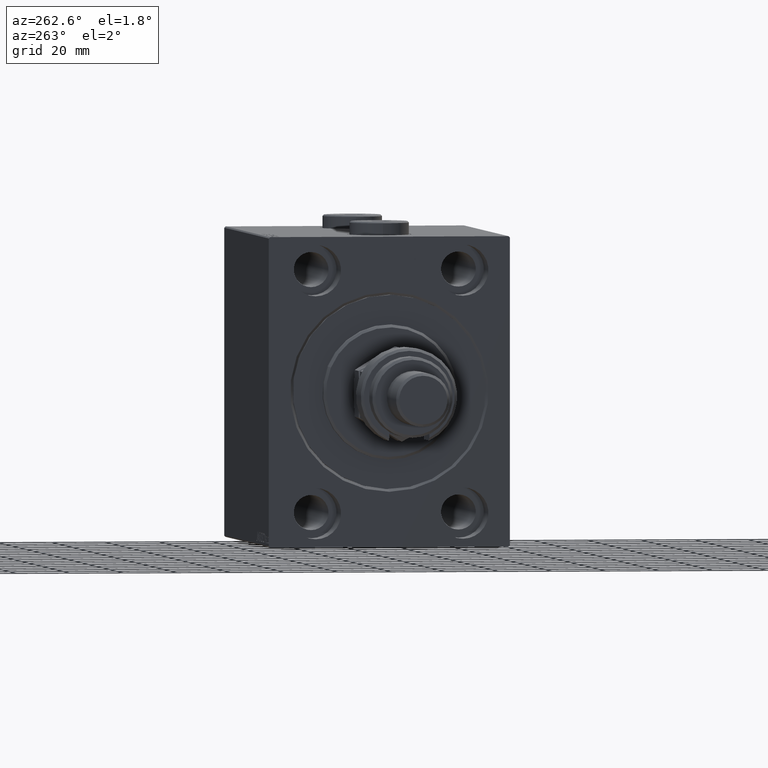
[diagram: clean part render]
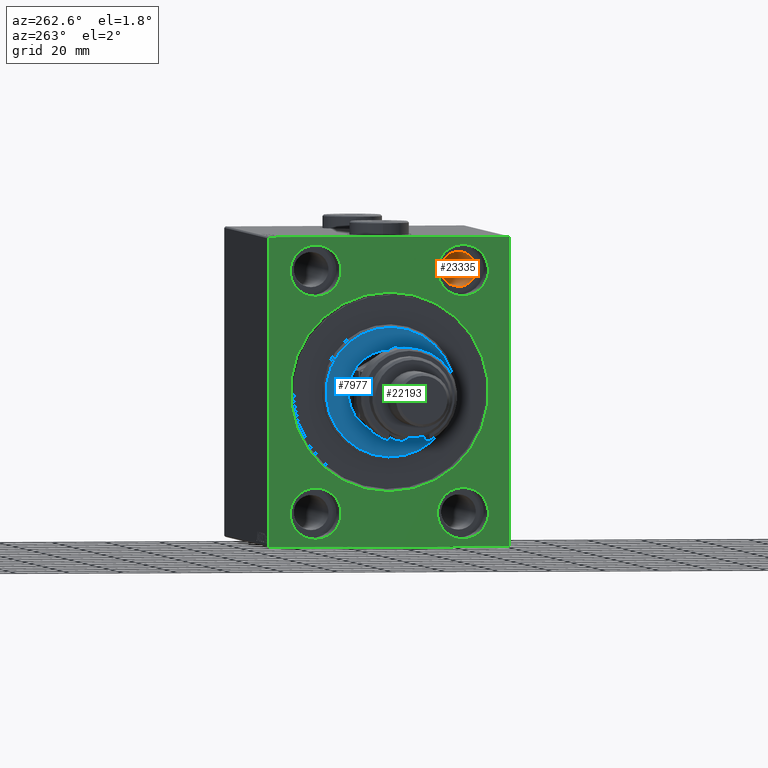
[diagram: same view with three faces highlighted in distinct colors, each labeled with its STEP entity id]
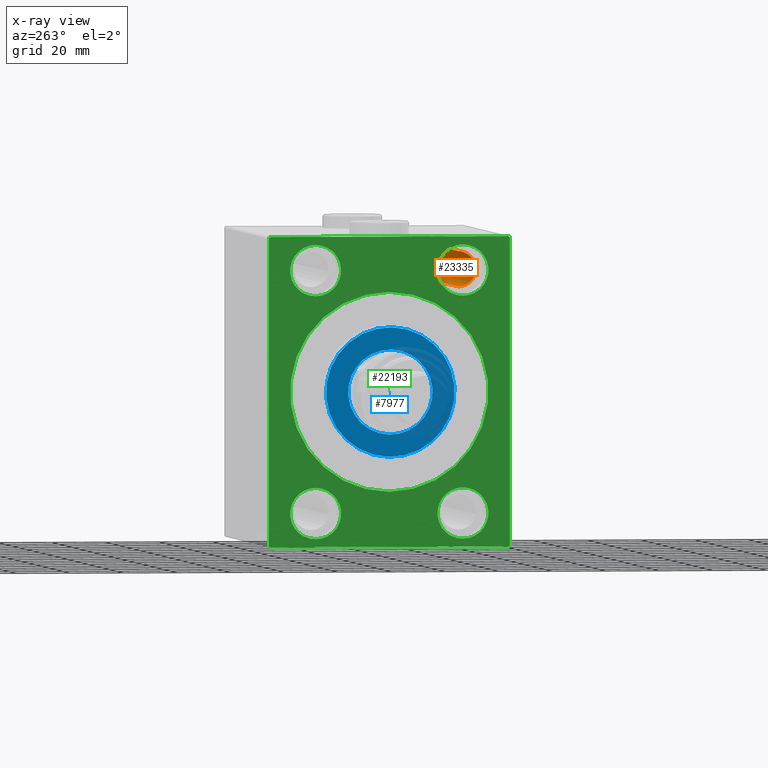
[diagram: x-ray of the same camera — body ghosted, the three highlighted faces saturated]
A machine part, auxiliary view with three faces highlighted in distinct colors.
The next image is the same camera in x-ray (body ghosted, the three faces saturated) — at least one of them is partly hidden behind the body in this view.
Their STEP definitions:

[orange] entity #23335 — the highlighted cylindrical surface (edge-blend (fillet) strip) has radius 6.5 mm, axis along (-1, -0, -0).
#351 = ORIENTED_EDGE ( 'NONE', *, *, #40664, .F. ) ;
#812 = EDGE_LOOP ( 'NONE', ( #16871, #20115, #41736, #351 ) ) ;
#5483 = VERTEX_POINT ( 'NONE', #6569 ) ;
#5888 = CARTESIAN_POINT ( 'NONE',  ( 115.0000000000000000, -27.49999999999998934, 38.50000000000000711 ) ) ;
#6569 = CARTESIAN_POINT ( 'NONE',  ( 115.0000000000000000, -27.49999999999998934, 51.50000000000000711 ) ) ;
#8068 = AXIS2_PLACEMENT_3D ( 'NONE', #41659, #9008, #8295 ) ;
#8295 = DIRECTION ( 'NONE',  ( 0.000000000000000000, 0.000000000000000000, 1.000000000000000000 ) ) ;
#8762 = EDGE_CURVE ( 'NONE', #38720, #5483, #48199, .T. ) ;
#9008 = DIRECTION ( 'NONE',  ( -1.000000000000000000, -0.000000000000000000, -0.000000000000000000 ) ) ;
#10858 = VERTEX_POINT ( 'NONE', #41650 ) ;
#11516 = CARTESIAN_POINT ( 'NONE',  ( 12.99999999999999822, -27.49999999999998934, 38.50000000000000711 ) ) ;
#11766 = DIRECTION ( 'NONE',  ( -1.000000000000000000, -0.000000000000000000, -0.000000000000000000 ) ) ;
#12049 = CIRCLE ( 'NONE', #36186, 6.499999999999999112 ) ;
#12416 = EDGE_CURVE ( 'NONE', #38720, #16245, #26626, .T. ) ;
#16245 = VERTEX_POINT ( 'NONE', #11516 ) ;
#16337 = DIRECTION ( 'NONE',  ( 0.000000000000000000, 0.000000000000000000, -1.000000000000000000 ) ) ;
#16819 = CARTESIAN_POINT ( 'NONE',  ( 115.0000000000000000, -27.49999999999998934, 45.00000000000000711 ) ) ;
#16871 = ORIENTED_EDGE ( 'NONE', *, *, #8762, .F. ) ;
#20115 = ORIENTED_EDGE ( 'NONE', *, *, #12416, .T. ) ;
#20807 = LINE ( 'NONE', #31269, #22046 ) ;
#22046 = VECTOR ( 'NONE', #46132, 1000.000000000000000 ) ;
#23335 = ADVANCED_FACE ( 'NONE', ( #26800 ), #37778, .F. ) ;
#26626 = LINE ( 'NONE', #41252, #35841 ) ;
#26800 = FACE_OUTER_BOUND ( 'NONE', #812, .T. ) ;
#27423 = EDGE_CURVE ( 'NONE', #16245, #10858, #12049, .T. ) ;
#31269 = CARTESIAN_POINT ( 'NONE',  ( 128.0000000000000000, -27.49999999999998934, 51.50000000000000711 ) ) ;
#32592 = AXIS2_PLACEMENT_3D ( 'NONE', #16819, #46284, #16337 ) ;
#33496 = CARTESIAN_POINT ( 'NONE',  ( 12.99999999999999822, -27.49999999999998934, 45.00000000000000711 ) ) ;
#33979 = DIRECTION ( 'NONE',  ( -1.000000000000000000, 0.000000000000000000, 0.000000000000000000 ) ) ;
#35841 = VECTOR ( 'NONE', #11766, 1000.000000000000000 ) ;
#36186 = AXIS2_PLACEMENT_3D ( 'NONE', #33496, #33979, #44469 ) ;
#37778 = CYLINDRICAL_SURFACE ( 'NONE', #8068, 6.499999999999999112 ) ;
#38720 = VERTEX_POINT ( 'NONE', #5888 ) ;
#40664 = EDGE_CURVE ( 'NONE', #5483, #10858, #20807, .T. ) ;
#41252 = CARTESIAN_POINT ( 'NONE',  ( 128.0000000000000000, -27.49999999999998934, 38.50000000000000711 ) ) ;
#41650 = CARTESIAN_POINT ( 'NONE',  ( 12.99999999999999822, -27.49999999999998934, 51.50000000000000711 ) ) ;
#41659 = CARTESIAN_POINT ( 'NONE',  ( 128.0000000000000000, -27.49999999999998934, 45.00000000000000711 ) ) ;
#41736 = ORIENTED_EDGE ( 'NONE', *, *, #27423, .T. ) ;
#44469 = DIRECTION ( 'NONE',  ( 0.000000000000000000, 0.000000000000000000, 1.000000000000000000 ) ) ;
#46132 = DIRECTION ( 'NONE',  ( -1.000000000000000000, -0.000000000000000000, -0.000000000000000000 ) ) ;
#46284 = DIRECTION ( 'NONE',  ( -1.000000000000000000, -0.000000000000000000, -0.000000000000000000 ) ) ;
#48199 = CIRCLE ( 'NONE', #32592, 6.499999999999999112 ) ;

[blue] entity #7977 — the highlighted planar face has unit normal (-1, 0, 0).
#181 = AXIS2_PLACEMENT_3D ( 'NONE', #20466, #35327, #46523 ) ;
#364 = PLANE ( 'NONE',  #3029 ) ;
#879 = CIRCLE ( 'NONE', #38208, 15.75000000000000000 ) ;
#1330 = ORIENTED_EDGE ( 'NONE', *, *, #38064, .T. ) ;
#2897 = DIRECTION ( 'NONE',  ( -1.000000000000000000, 0.000000000000000000, -0.000000000000000000 ) ) ;
#3029 = AXIS2_PLACEMENT_3D ( 'NONE', #3762, #37367, #33208 ) ;
#3762 = CARTESIAN_POINT ( 'NONE',  ( 3.000000000000000000, 0.000000000000000000, 0.000000000000000000 ) ) ;
#6500 = EDGE_CURVE ( 'NONE', #45023, #19609, #32519, .T. ) ;
#7977 = ADVANCED_FACE ( 'NONE', ( #37126, #26629 ), #364, .T. ) ;
#8853 = AXIS2_PLACEMENT_3D ( 'NONE', #24581, #13627, #28476 ) ;
#9620 = CIRCLE ( 'NONE', #8853, 24.00000000000000711 ) ;
#13627 = DIRECTION ( 'NONE',  ( 1.000000000000000000, -0.000000000000000000, 0.000000000000000000 ) ) ;
#14344 = DIRECTION ( 'NONE',  ( 0.000000000000000000, 0.000000000000000000, -1.000000000000000000 ) ) ;
#14695 = EDGE_LOOP ( 'NONE', ( #35229, #1330 ) ) ;
#16142 = VERTEX_POINT ( 'NONE', #39379 ) ;
#18228 = CARTESIAN_POINT ( 'NONE',  ( 3.000000000000000000, 0.000000000000000000, 0.000000000000000000 ) ) ;
#19596 = EDGE_LOOP ( 'NONE', ( #25131, #32655 ) ) ;
#19609 = VERTEX_POINT ( 'NONE', #39923 ) ;
#20466 = CARTESIAN_POINT ( 'NONE',  ( 3.000000000000000000, 0.000000000000000000, 0.000000000000000000 ) ) ;
#21178 = CIRCLE ( 'NONE', #181, 24.00000000000000711 ) ;
#21654 = VERTEX_POINT ( 'NONE', #44866 ) ;
#23392 = EDGE_CURVE ( 'NONE', #16142, #21654, #9620, .T. ) ;
#24141 = DIRECTION ( 'NONE',  ( 0.000000000000000000, 0.000000000000000000, -1.000000000000000000 ) ) ;
#24581 = CARTESIAN_POINT ( 'NONE',  ( 3.000000000000000000, 0.000000000000000000, 0.000000000000000000 ) ) ;
#25131 = ORIENTED_EDGE ( 'NONE', *, *, #35407, .T. ) ;
#26629 = FACE_BOUND ( 'NONE', #19596, .T. ) ;
#27559 = CARTESIAN_POINT ( 'NONE',  ( 3.000000000000000000, 0.000000000000000000, 0.000000000000000000 ) ) ;
#28476 = DIRECTION ( 'NONE',  ( 0.000000000000000000, 0.000000000000000000, -1.000000000000000000 ) ) ;
#28641 = AXIS2_PLACEMENT_3D ( 'NONE', #18228, #2897, #14344 ) ;
#31238 = CARTESIAN_POINT ( 'NONE',  ( 3.000000000000000000, 1.928818708657080950E-15, -15.75000000000000000 ) ) ;
#31918 = DIRECTION ( 'NONE',  ( -1.000000000000000000, 0.000000000000000000, -0.000000000000000000 ) ) ;
#32519 = CIRCLE ( 'NONE', #28641, 15.75000000000000000 ) ;
#32655 = ORIENTED_EDGE ( 'NONE', *, *, #6500, .T. ) ;
#33208 = DIRECTION ( 'NONE',  ( 0.000000000000000000, 0.000000000000000000, -1.000000000000000000 ) ) ;
#35229 = ORIENTED_EDGE ( 'NONE', *, *, #23392, .T. ) ;
#35327 = DIRECTION ( 'NONE',  ( 1.000000000000000000, -0.000000000000000000, 0.000000000000000000 ) ) ;
#35407 = EDGE_CURVE ( 'NONE', #19609, #45023, #879, .T. ) ;
#37126 = FACE_OUTER_BOUND ( 'NONE', #14695, .T. ) ;
#37367 = DIRECTION ( 'NONE',  ( 1.000000000000000000, -0.000000000000000000, 0.000000000000000000 ) ) ;
#38064 = EDGE_CURVE ( 'NONE', #21654, #16142, #21178, .T. ) ;
#38208 = AXIS2_PLACEMENT_3D ( 'NONE', #27559, #31918, #24141 ) ;
#39379 = CARTESIAN_POINT ( 'NONE',  ( 3.000000000000000000, 0.000000000000000000, 24.00000000000000711 ) ) ;
#39923 = CARTESIAN_POINT ( 'NONE',  ( 3.000000000000000000, 0.000000000000000000, 15.75000000000000000 ) ) ;
#44866 = CARTESIAN_POINT ( 'NONE',  ( 3.000000000000000000, 3.000384657911015469E-15, -24.00000000000000711 ) ) ;
#45023 = VERTEX_POINT ( 'NONE', #31238 ) ;
#46523 = DIRECTION ( 'NONE',  ( 0.000000000000000000, 0.000000000000000000, -1.000000000000000000 ) ) ;

[green] entity #22193 — the highlighted planar face has unit normal (1, 0, 0).
#231 = EDGE_CURVE ( 'NONE', #40762, #41195, #12906, .T. ) ;
#240 = DIRECTION ( 'NONE',  ( 0.000000000000000000, 0.000000000000000000, -1.000000000000000000 ) ) ;
#615 = FACE_BOUND ( 'NONE', #45430, .T. ) ;
#1750 = DIRECTION ( 'NONE',  ( 0.000000000000000000, 0.000000000000000000, 1.000000000000000000 ) ) ;
#1800 = AXIS2_PLACEMENT_3D ( 'NONE', #15460, #23017, #27130 ) ;
#1897 = VERTEX_POINT ( 'NONE', #8191 ) ;
#2256 = DIRECTION ( 'NONE',  ( 0.000000000000000000, -1.206764157201257045E-16, 1.000000000000000000 ) ) ;
#2273 = CARTESIAN_POINT ( 'NONE',  ( 0.000000000000000000, -44.50000000000002842, -57.50000000000000711 ) ) ;
#2780 = EDGE_CURVE ( 'NONE', #1897, #34014, #22633, .T. ) ;
#3060 = CIRCLE ( 'NONE', #30280, 37.00000000000000711 ) ;
#3194 = ORIENTED_EDGE ( 'NONE', *, *, #2780, .F. ) ;
#3266 = EDGE_CURVE ( 'NONE', #38025, #34014, #28083, .T. ) ;
#4133 = CARTESIAN_POINT ( 'NONE',  ( 0.000000000000000000, 27.50000000000001066, 35.50000000000000711 ) ) ;
#4288 = VERTEX_POINT ( 'NONE', #31442 ) ;
#4339 = ORIENTED_EDGE ( 'NONE', *, *, #20889, .T. ) ;
#4842 = AXIS2_PLACEMENT_3D ( 'NONE', #39960, #28507, #36059 ) ;
#4925 = EDGE_CURVE ( 'NONE', #43211, #12698, #3060, .T. ) ;
#5848 = EDGE_LOOP ( 'NONE', ( #35536, #39195 ) ) ;
#5936 = LINE ( 'NONE', #17116, #35801 ) ;
#6166 = DIRECTION ( 'NONE',  ( 0.000000000000000000, -1.000000000000000000, -1.541976423090495387E-16 ) ) ;
#6735 = DIRECTION ( 'NONE',  ( -1.000000000000000000, 0.000000000000000000, 0.000000000000000000 ) ) ;
#6864 = ORIENTED_EDGE ( 'NONE', *, *, #33501, .F. ) ;
#7487 = DIRECTION ( 'NONE',  ( -1.000000000000000000, 0.000000000000000000, 0.000000000000000000 ) ) ;
#7665 = VECTOR ( 'NONE', #35880, 1000.000000000000114 ) ;
#8161 = FACE_BOUND ( 'NONE', #33029, .T. ) ;
#8191 = CARTESIAN_POINT ( 'NONE',  ( 0.000000000000000000, -45.00000000000000000, 56.99999999999999289 ) ) ;
#8709 = CARTESIAN_POINT ( 'NONE',  ( 0.000000000000000000, -27.50000000000000000, -35.49999999999998579 ) ) ;
#9799 = ORIENTED_EDGE ( 'NONE', *, *, #41749, .F. ) ;
#9846 = DIRECTION ( 'NONE',  ( -1.000000000000000000, 0.000000000000000000, 0.000000000000000000 ) ) ;
#10700 = CARTESIAN_POINT ( 'NONE',  ( 0.000000000000000000, 45.00000000000001421, -57.50000000000000711 ) ) ;
#10898 = ORIENTED_EDGE ( 'NONE', *, *, #3266, .T. ) ;
#11157 = CIRCLE ( 'NONE', #20502, 9.500000000000001776 ) ;
#11232 = AXIS2_PLACEMENT_3D ( 'NONE', #25226, #6735, #25462 ) ;
#11368 = EDGE_CURVE ( 'NONE', #43501, #19550, #5936, .T. ) ;
#11711 = AXIS2_PLACEMENT_3D ( 'NONE', #48150, #7487, #14302 ) ;
#12270 = FACE_OUTER_BOUND ( 'NONE', #38431, .T. ) ;
#12363 = DIRECTION ( 'NONE',  ( -0.000000000000000000, 0.7071067811865671127, -0.7071067811865279218 ) ) ;
#12534 = EDGE_CURVE ( 'NONE', #33236, #44652, #34267, .T. ) ;
#12587 = CARTESIAN_POINT ( 'NONE',  ( 0.000000000000000000, 27.50000000000001066, 45.00000000000000711 ) ) ;
#12698 = VERTEX_POINT ( 'NONE', #47789 ) ;
#12906 = CIRCLE ( 'NONE', #40134, 9.500000000000001776 ) ;
#13521 = VECTOR ( 'NONE', #20652, 1000.000000000000114 ) ;
#13702 = EDGE_CURVE ( 'NONE', #38025, #28768, #29569, .T. ) ;
#13708 = DIRECTION ( 'NONE',  ( -1.000000000000000000, 0.000000000000000000, 0.000000000000000000 ) ) ;
#13744 = DIRECTION ( 'NONE',  ( 0.000000000000000000, 0.000000000000000000, 1.000000000000000000 ) ) ;
#13783 = ORIENTED_EDGE ( 'NONE', *, *, #37078, .F. ) ;
#14302 = DIRECTION ( 'NONE',  ( 0.000000000000000000, 0.000000000000000000, 1.000000000000000000 ) ) ;
#15443 = VECTOR ( 'NONE', #240, 1000.000000000000000 ) ;
#15460 = CARTESIAN_POINT ( 'NONE',  ( 0.000000000000000000, 0.000000000000000000, 0.000000000000000000 ) ) ;
#16087 = EDGE_CURVE ( 'NONE', #44652, #33236, #18841, .T. ) ;
#16780 = ORIENTED_EDGE ( 'NONE', *, *, #11368, .F. ) ;
#16793 = CARTESIAN_POINT ( 'NONE',  ( 0.000000000000000000, 27.49999999999998934, -54.49999999999998579 ) ) ;
#16981 = LINE ( 'NONE', #31822, #18312 ) ;
#17116 = CARTESIAN_POINT ( 'NONE',  ( 0.000000000000000000, 45.00000000000000000, 57.50000000000000711 ) ) ;
#17233 = CARTESIAN_POINT ( 'NONE',  ( 0.000000000000000000, 27.50000000000001066, 54.50000000000000711 ) ) ;
#17234 = VECTOR ( 'NONE', #21784, 1000.000000000000000 ) ;
#17287 = VERTEX_POINT ( 'NONE', #45806 ) ;
#17901 = CIRCLE ( 'NONE', #11711, 9.500000000000001776 ) ;
#18166 = CARTESIAN_POINT ( 'NONE',  ( 0.000000000000000000, 0.000000000000000000, 0.000000000000000000 ) ) ;
#18312 = VECTOR ( 'NONE', #12363, 1000.000000000000000 ) ;
#18841 = CIRCLE ( 'NONE', #32029, 9.500000000000001776 ) ;
#19023 = CIRCLE ( 'NONE', #11232, 9.500000000000001776 ) ;
#19095 = EDGE_CURVE ( 'NONE', #17287, #28768, #19598, .T. ) ;
#19550 = VERTEX_POINT ( 'NONE', #26374 ) ;
#19598 = LINE ( 'NONE', #38355, #22042 ) ;
#19660 = DIRECTION ( 'NONE',  ( -1.000000000000000000, 0.000000000000000000, 0.000000000000000000 ) ) ;
#20502 = AXIS2_PLACEMENT_3D ( 'NONE', #22221, #13708, #25863 ) ;
#20606 = CARTESIAN_POINT ( 'NONE',  ( 0.000000000000000000, 0.000000000000000000, 37.00000000000000711 ) ) ;
#20652 = DIRECTION ( 'NONE',  ( -0.000000000000000000, 0.7071067811865474617, 0.7071067811865474617 ) ) ;
#20889 = EDGE_CURVE ( 'NONE', #1897, #19550, #38923, .T. ) ;
#21316 = AXIS2_PLACEMENT_3D ( 'NONE', #27293, #42158, #23654 ) ;
#21784 = DIRECTION ( 'NONE',  ( 0.000000000000000000, 1.000000000000000000, 0.000000000000000000 ) ) ;
#22042 = VECTOR ( 'NONE', #37883, 1000.000000000000000 ) ;
#22193 = ADVANCED_FACE ( 'NONE', ( #27365, #8161, #42233, #30079, #615, #12270 ), #38343, .F. ) ;
#22221 = CARTESIAN_POINT ( 'NONE',  ( 0.000000000000000000, -27.49999999999998934, 45.00000000000000711 ) ) ;
#22633 = LINE ( 'NONE', #33582, #15443 ) ;
#22941 = ORIENTED_EDGE ( 'NONE', *, *, #47296, .F. ) ;
#23017 = DIRECTION ( 'NONE',  ( 1.000000000000000000, 0.000000000000000000, 0.000000000000000000 ) ) ;
#23424 = VERTEX_POINT ( 'NONE', #16793 ) ;
#23654 = DIRECTION ( 'NONE',  ( 0.000000000000000000, 0.000000000000000000, 1.000000000000000000 ) ) ;
#24808 = EDGE_LOOP ( 'NONE', ( #27032, #32149 ) ) ;
#25009 = CARTESIAN_POINT ( 'NONE',  ( 0.000000000000000000, 45.00000000000000000, 57.00000000000000711 ) ) ;
#25112 = DIRECTION ( 'NONE',  ( -1.000000000000000000, 0.000000000000000000, 0.000000000000000000 ) ) ;
#25226 = CARTESIAN_POINT ( 'NONE',  ( 0.000000000000000000, -27.49999999999998934, 45.00000000000000711 ) ) ;
#25462 = DIRECTION ( 'NONE',  ( 0.000000000000000000, 0.000000000000000000, 1.000000000000000000 ) ) ;
#25863 = DIRECTION ( 'NONE',  ( 0.000000000000000000, 0.000000000000000000, 1.000000000000000000 ) ) ;
#26374 = CARTESIAN_POINT ( 'NONE',  ( 0.000000000000000000, -44.49999999999997158, 57.49999999999999289 ) ) ;
#27032 = ORIENTED_EDGE ( 'NONE', *, *, #4925, .T. ) ;
#27094 = EDGE_CURVE ( 'NONE', #23424, #39954, #37725, .T. ) ;
#27130 = DIRECTION ( 'NONE',  ( 0.000000000000000000, 0.000000000000000000, -1.000000000000000000 ) ) ;
#27293 = CARTESIAN_POINT ( 'NONE',  ( 0.000000000000000000, 27.49999999999998934, -44.99999999999998579 ) ) ;
#27365 = FACE_BOUND ( 'NONE', #24808, .T. ) ;
#27432 = DIRECTION ( 'NONE',  ( 0.000000000000000000, 0.000000000000000000, 1.000000000000000000 ) ) ;
#27598 = ORIENTED_EDGE ( 'NONE', *, *, #28436, .T. ) ;
#28039 = ORIENTED_EDGE ( 'NONE', *, *, #27094, .F. ) ;
#28083 = LINE ( 'NONE', #2273, #7665 ) ;
#28436 = EDGE_CURVE ( 'NONE', #43501, #32653, #16981, .T. ) ;
#28442 = CARTESIAN_POINT ( 'NONE',  ( 0.000000000000000000, -45.00000000000000000, 56.99999999999999289 ) ) ;
#28507 = DIRECTION ( 'NONE',  ( 1.000000000000000000, 0.000000000000000000, 0.000000000000000000 ) ) ;
#28768 = VERTEX_POINT ( 'NONE', #32262 ) ;
#29569 = LINE ( 'NONE', #37130, #17234 ) ;
#30079 = FACE_BOUND ( 'NONE', #5848, .T. ) ;
#30280 = AXIS2_PLACEMENT_3D ( 'NONE', #18166, #40337, #40580 ) ;
#30542 = ORIENTED_EDGE ( 'NONE', *, *, #44063, .F. ) ;
#31442 = CARTESIAN_POINT ( 'NONE',  ( 0.000000000000000000, -27.49999999999998934, 54.50000000000000711 ) ) ;
#31822 = CARTESIAN_POINT ( 'NONE',  ( 0.000000000000000000, 44.50000000000000000, 57.50000000000000711 ) ) ;
#32029 = AXIS2_PLACEMENT_3D ( 'NONE', #12587, #19660, #27432 ) ;
#32149 = ORIENTED_EDGE ( 'NONE', *, *, #38068, .T. ) ;
#32262 = CARTESIAN_POINT ( 'NONE',  ( 0.000000000000000000, 44.50000000000001421, -57.50000000000000711 ) ) ;
#32653 = VERTEX_POINT ( 'NONE', #25009 ) ;
#33029 = EDGE_LOOP ( 'NONE', ( #22941, #28039 ) ) ;
#33236 = VERTEX_POINT ( 'NONE', #4133 ) ;
#33501 = EDGE_CURVE ( 'NONE', #41195, #40762, #17901, .T. ) ;
#33582 = CARTESIAN_POINT ( 'NONE',  ( 0.000000000000000000, -45.00000000000000000, 57.49999999999999289 ) ) ;
#33619 = VERTEX_POINT ( 'NONE', #34714 ) ;
#34014 = VERTEX_POINT ( 'NONE', #35206 ) ;
#34267 = CIRCLE ( 'NONE', #42061, 9.500000000000001776 ) ;
#34714 = CARTESIAN_POINT ( 'NONE',  ( 0.000000000000000000, -27.49999999999998934, 35.50000000000000711 ) ) ;
#35125 = ORIENTED_EDGE ( 'NONE', *, *, #231, .F. ) ;
#35206 = CARTESIAN_POINT ( 'NONE',  ( 0.000000000000000000, -45.00000000000000000, -57.00000000000003553 ) ) ;
#35536 = ORIENTED_EDGE ( 'NONE', *, *, #16087, .F. ) ;
#35801 = VECTOR ( 'NONE', #6166, 1000.000000000000000 ) ;
#35880 = DIRECTION ( 'NONE',  ( -0.000000000000000000, -0.7071067811865474617, 0.7071067811865474617 ) ) ;
#36059 = DIRECTION ( 'NONE',  ( 0.000000000000000000, 0.000000000000000000, -1.000000000000000000 ) ) ;
#37021 = LINE ( 'NONE', #10700, #47604 ) ;
#37078 = EDGE_CURVE ( 'NONE', #17287, #32653, #37021, .T. ) ;
#37130 = CARTESIAN_POINT ( 'NONE',  ( 0.000000000000000000, -45.00000000000000000, -57.50000000000000711 ) ) ;
#37725 = CIRCLE ( 'NONE', #40085, 9.500000000000001776 ) ;
#37883 = DIRECTION ( 'NONE',  ( 0.000000000000000000, -0.7071067811865279218, -0.7071067811865671127 ) ) ;
#38025 = VERTEX_POINT ( 'NONE', #39470 ) ;
#38068 = EDGE_CURVE ( 'NONE', #12698, #43211, #39846, .T. ) ;
#38343 = PLANE ( 'NONE',  #1800 ) ;
#38355 = CARTESIAN_POINT ( 'NONE',  ( 0.000000000000000000, 45.00000000000001421, -57.00000000000000711 ) ) ;
#38431 = EDGE_LOOP ( 'NONE', ( #3194, #4339, #16780, #27598, #13783, #43576, #44613, #10898 ) ) ;
#38923 = LINE ( 'NONE', #28442, #13521 ) ;
#39195 = ORIENTED_EDGE ( 'NONE', *, *, #12534, .F. ) ;
#39470 = CARTESIAN_POINT ( 'NONE',  ( 0.000000000000000000, -44.50000000000002842, -57.50000000000000711 ) ) ;
#39846 = CIRCLE ( 'NONE', #4842, 37.00000000000000711 ) ;
#39954 = VERTEX_POINT ( 'NONE', #48013 ) ;
#39960 = CARTESIAN_POINT ( 'NONE',  ( 0.000000000000000000, 0.000000000000000000, 0.000000000000000000 ) ) ;
#39990 = CIRCLE ( 'NONE', #21316, 9.500000000000001776 ) ;
#40085 = AXIS2_PLACEMENT_3D ( 'NONE', #43629, #25112, #1750 ) ;
#40134 = AXIS2_PLACEMENT_3D ( 'NONE', #47116, #9846, #13744 ) ;
#40337 = DIRECTION ( 'NONE',  ( 1.000000000000000000, 0.000000000000000000, 0.000000000000000000 ) ) ;
#40580 = DIRECTION ( 'NONE',  ( 0.000000000000000000, 0.000000000000000000, -1.000000000000000000 ) ) ;
#40762 = VERTEX_POINT ( 'NONE', #44175 ) ;
#41195 = VERTEX_POINT ( 'NONE', #8709 ) ;
#41749 = EDGE_CURVE ( 'NONE', #4288, #33619, #11157, .T. ) ;
#42061 = AXIS2_PLACEMENT_3D ( 'NONE', #42674, #42922, #42205 ) ;
#42095 = EDGE_LOOP ( 'NONE', ( #9799, #30542 ) ) ;
#42158 = DIRECTION ( 'NONE',  ( -1.000000000000000000, 0.000000000000000000, 0.000000000000000000 ) ) ;
#42205 = DIRECTION ( 'NONE',  ( 0.000000000000000000, 0.000000000000000000, 1.000000000000000000 ) ) ;
#42233 = FACE_BOUND ( 'NONE', #42095, .T. ) ;
#42674 = CARTESIAN_POINT ( 'NONE',  ( 0.000000000000000000, 27.50000000000001066, 45.00000000000000711 ) ) ;
#42922 = DIRECTION ( 'NONE',  ( -1.000000000000000000, 0.000000000000000000, 0.000000000000000000 ) ) ;
#43211 = VERTEX_POINT ( 'NONE', #20606 ) ;
#43501 = VERTEX_POINT ( 'NONE', #43677 ) ;
#43576 = ORIENTED_EDGE ( 'NONE', *, *, #19095, .T. ) ;
#43629 = CARTESIAN_POINT ( 'NONE',  ( 0.000000000000000000, 27.49999999999998934, -44.99999999999998579 ) ) ;
#43677 = CARTESIAN_POINT ( 'NONE',  ( 0.000000000000000000, 44.50000000000000000, 57.50000000000000711 ) ) ;
#44063 = EDGE_CURVE ( 'NONE', #33619, #4288, #19023, .T. ) ;
#44175 = CARTESIAN_POINT ( 'NONE',  ( 0.000000000000000000, -27.50000000000000000, -54.49999999999998579 ) ) ;
#44613 = ORIENTED_EDGE ( 'NONE', *, *, #13702, .F. ) ;
#44652 = VERTEX_POINT ( 'NONE', #17233 ) ;
#45430 = EDGE_LOOP ( 'NONE', ( #6864, #35125 ) ) ;
#45806 = CARTESIAN_POINT ( 'NONE',  ( 0.000000000000000000, 45.00000000000001421, -57.00000000000000711 ) ) ;
#47116 = CARTESIAN_POINT ( 'NONE',  ( 0.000000000000000000, -27.50000000000000000, -44.99999999999998579 ) ) ;
#47296 = EDGE_CURVE ( 'NONE', #39954, #23424, #39990, .T. ) ;
#47604 = VECTOR ( 'NONE', #2256, 1000.000000000000000 ) ;
#47789 = CARTESIAN_POINT ( 'NONE',  ( 0.000000000000000000, 4.531193156845207581E-15, -37.00000000000000711 ) ) ;
#48013 = CARTESIAN_POINT ( 'NONE',  ( 0.000000000000000000, 27.49999999999998934, -35.49999999999998579 ) ) ;
#48150 = CARTESIAN_POINT ( 'NONE',  ( 0.000000000000000000, -27.50000000000000000, -44.99999999999998579 ) ) ;